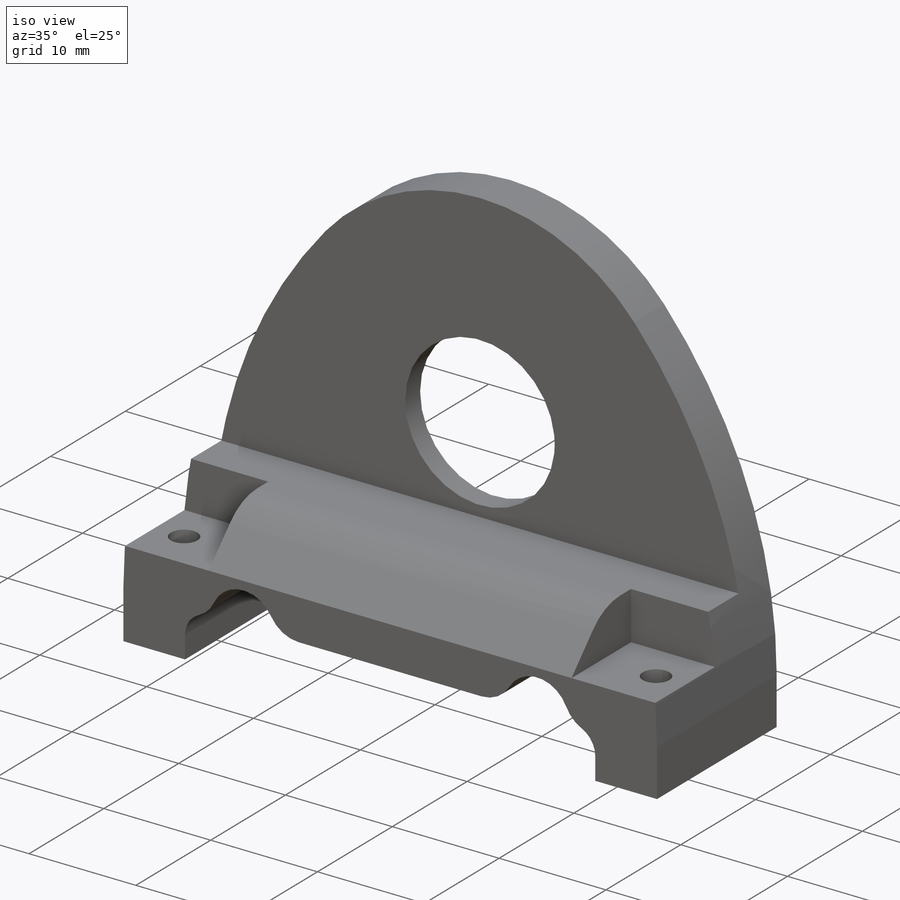
[diagram: iso view]
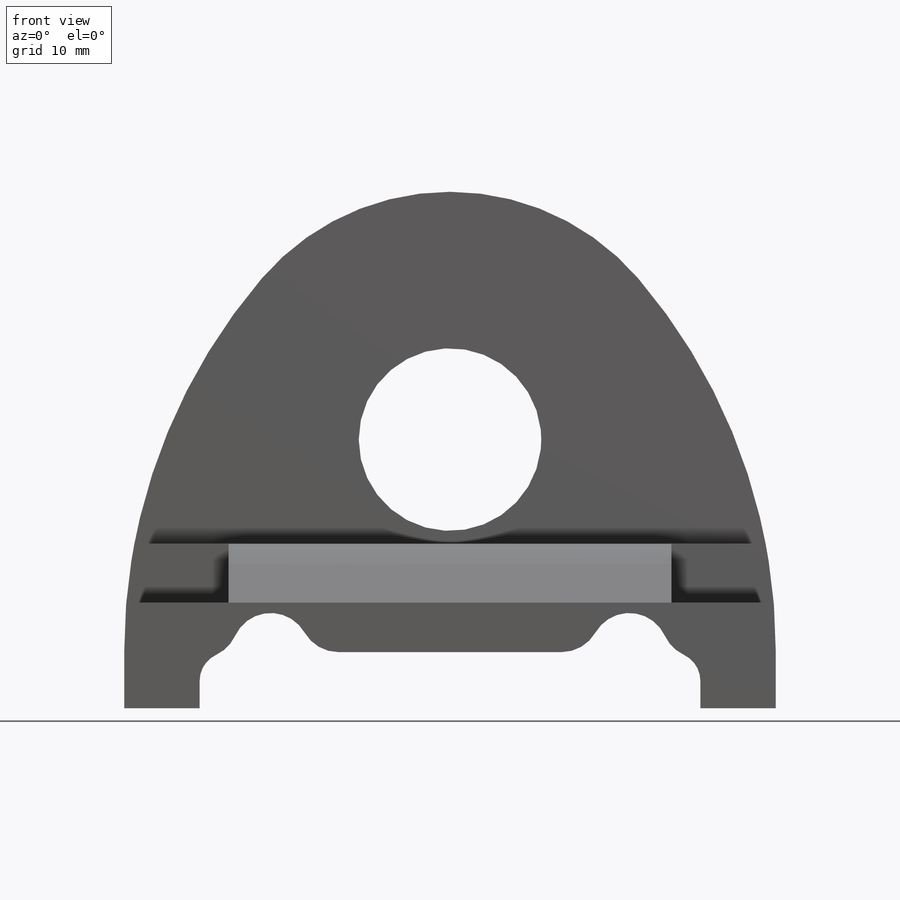
[diagram: front view]
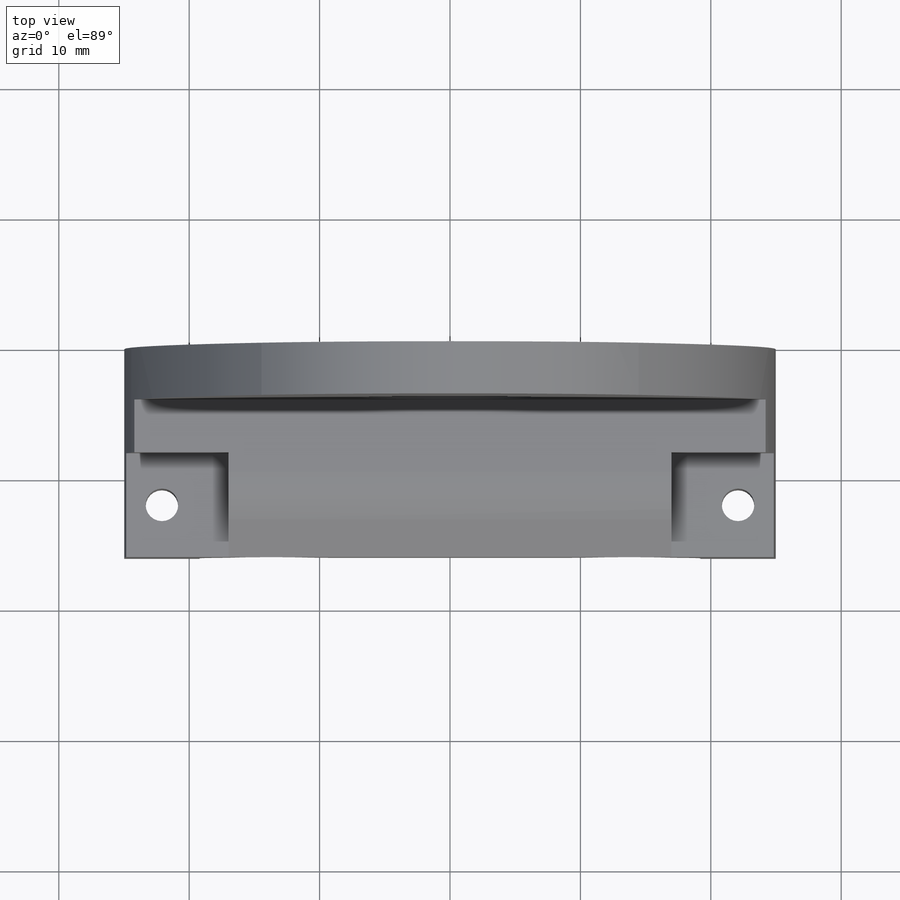
[diagram: top view]
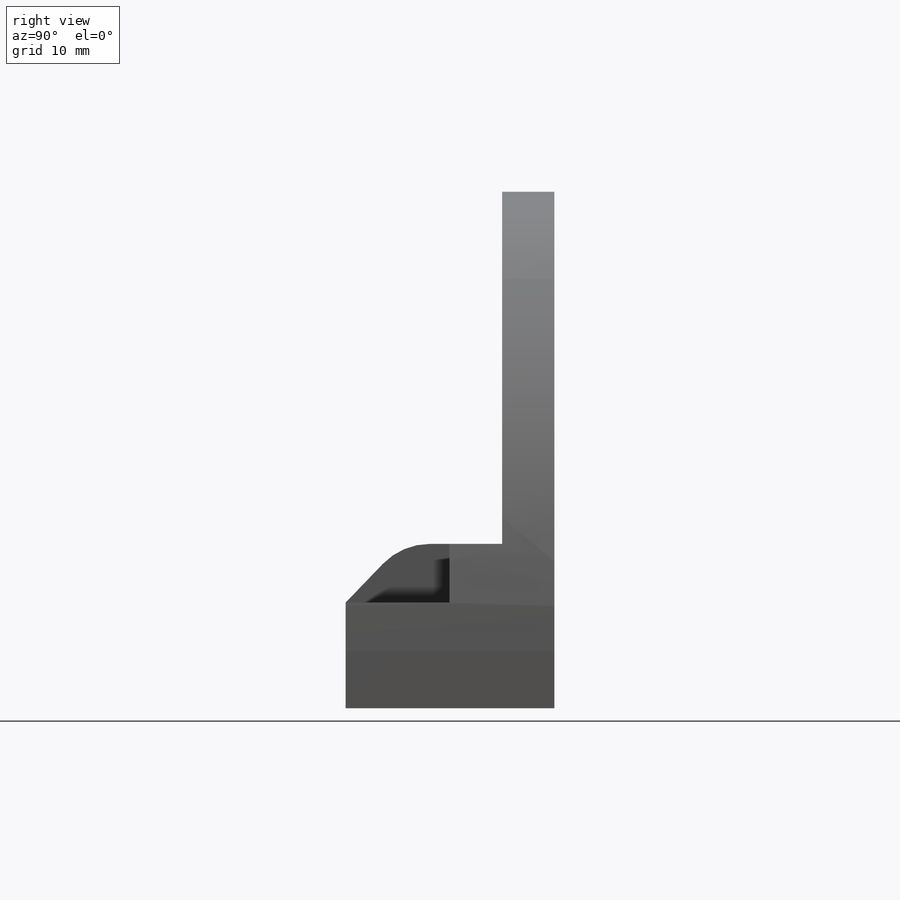
[diagram: right view]
SOLIDWORKS PART (.sldprt)
format: sldprt  version: not decoded by parser v0  size: 396,800 bytes
history: native  units: mm
features: sketch x11, plane x4, cut_extrude x4, extrude x3, fillet x3, material x1, chamfer x1, hole x1, mirror x1 (+9 scaffold rows collapsed)
feature tree (38):
  scaffold x9  (default folders/planes/origin — collapsed)
  material  "Material <não especificado>"
  plane  "Plano frontal"
  plane  "Plano superior"
  plane  "Plano direito"
  sketch  "Esboço1"  dims[c1.D1=32.62mm c1.D2=29.9mm c1.D6=2.57mm c1.D10=20.0mm c2.D2=29.9mm c2.D3=18.98mm c2.D4=18.98mm c2.D5=20.6mm c2.D6=0.23mm c2.D7=22.0mm c2.D8=6.0mm c3.D7=5.0mm c3.D9=6.0mm c3.D1=37.96mm]
  extrude  "Ressalto-extrusão1"  Depth=2mm
  sketch  "Esboço2"  dims[D2=14.0mm D1=0.0mm]
  extrude  "Ressalto-extrusão2"  Depth=2mm
  sketch  "Esboço3"  dims[D1=12.0mm]
  extrude  "Ressalto-extrusão3"  Depth=8.1mm
  chamfer  "Chanfro1"  Distance=12mm
  fillet  "Filete1"  Radius=44mm
  sketch  "Esboço4"  dims[D1=0.0mm]
  cut_extrude  "Corte-extrusão1"  [1 undecoded]
  sketch  "Esboço6"  dims[D3=6.0mm D4=6.0mm D5=3.0mm D2=27.5mm D1=0.2mm]
  cut_extrude  "Corte-extrusão2"  [1 undecoded]
  plane  "Plano1"
  sketch  "Esboço7"
  cut_extrude  "Corte-extrusão5"  Depth=8mm
  fillet  "Filete2"  Radius=5mm
  sketch  "Esboço8"  dims[D1=4.0mm D2=4.0mm]
  hole  "Furo roscado de M3x0.51"  Diameter=2.5mm Depth=8.5mm
  sketch  "Esboço10"
  sketch  "Esboço9"  dims[hole-wizard template sketch: 50 standard entries collapsed; hole parameters above]
  sketch  "Esboço11"
  sketch  "Esboço12"  dims[D2=1.5mm D1=0.0mm]
  cut_extrude  "Corte-extrusão6"  Depth=8mm
  mirror  "Espelhar1"
  fillet  "Filete3"  Radius=3mm
decode coverage: 18 of 24 modeling features carry decoded parameters
note: ~ marks probable driven/reference dimensions
note: 2 parameter values undecoded
note: suppression state not decoded; provenance and decode notes live in map.json
